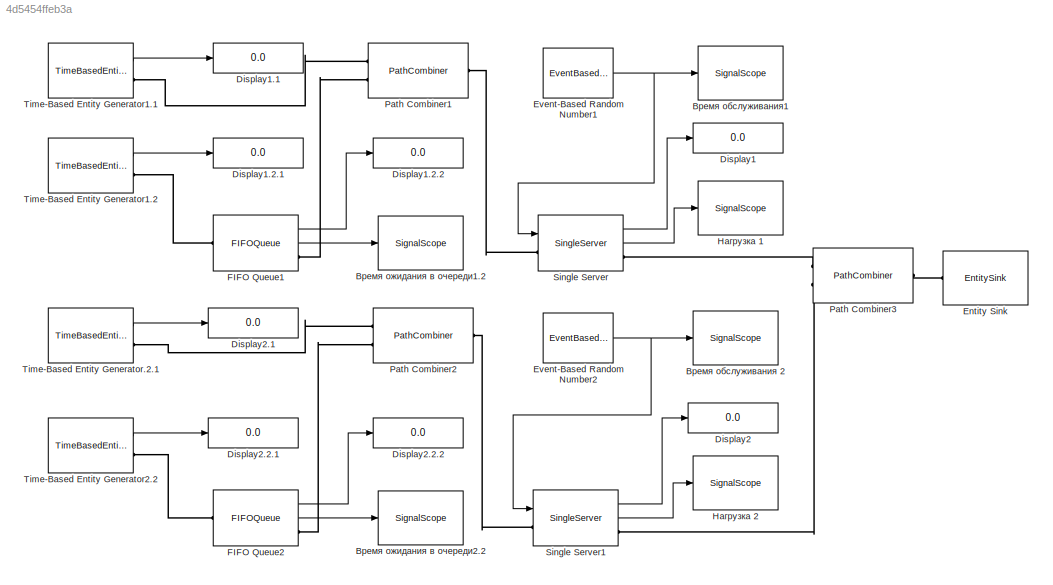
MODEL slx_4d5454ffeb3a
KIND model
BLOCK [Display] Display1
  Decimation = 1
  Lockdown = off
  Ports = [1]
BLOCK [Display] Display1.1
  Decimation = 1
  Lockdown = off
  Ports = [1]
BLOCK [Display] Display1.2.1
  Decimation = 1
  Lockdown = off
  Ports = [1]
BLOCK [Display] Display1.2.2
  Decimation = 1
  Lockdown = off
  Ports = [1]
BLOCK [Display] Display2
  Decimation = 1
  Lockdown = off
  Ports = [1]
BLOCK [Display] Display2.1
  Decimation = 1
  Lockdown = off
  Ports = [1]
BLOCK [Display] Display2.2.1
  Decimation = 1
  Lockdown = off
  Ports = [1]
BLOCK [Display] Display2.2.2
  Decimation = 1
  Lockdown = off
  Ports = [1]
BLOCK [EntitySink] Entity Sink
  Ports = [0, 0, 0, 0, 0, 1]
BLOCK [EventBasedRandomNumber] Event-Based Random Number1
  Distribution = Uniform
  OutputPortMap = o0
  Ports = [0, 1]
  Seed = 12
  maxUnif = 14
  meanExp = 2.5
  minUnif = 8
BLOCK [EventBasedRandomNumber] Event-Based Random Number2
  Distribution = Uniform
  OutputPortMap = o0
  Ports = [0, 1]
  Seed = 12
  maxUnif = 7
  meanExp = 3
  minUnif = 6
BLOCK [FIFOQueue] FIFO Queue1
  Capacity = 30
  OutputPortMap = o0,o2
  Ports = [0, 2, 0, 0, 0, 1, 1]
  StatAverageWait = on
  StatNumberDeparted = on
BLOCK [FIFOQueue] FIFO Queue2
  Capacity = 30
  OutputPortMap = o0,o2
  Ports = [0, 2, 0, 0, 0, 1, 1]
  StatAverageWait = on
  StatNumberDeparted = on
BLOCK [PathCombiner] Path Combiner1
  NumberInputPorts = 2
  Ports = [0, 0, 0, 0, 0, 2, 1]
BLOCK [PathCombiner] Path Combiner2
  NumberInputPorts = 2
  Ports = [0, 0, 0, 0, 0, 2, 1]
BLOCK [PathCombiner] Path Combiner3
  InputPortPrecedence = Round robin
  NumberInputPorts = 2
  Ports = [0, 0, 0, 0, 0, 2, 1]
BLOCK [SingleServer] Single Server
  InputPortMap = u0
  OutputPortMap = o0,o5
  Ports = [1, 2, 0, 0, 0, 1, 1]
  PriorityServiceCompletion = 50
  ServiceTimeFrom = Signal port t
  StatNumberDeparted = on
  StatUtilization = on
BLOCK [SingleServer] Single Server1
  InputPortMap = u0
  OutputPortMap = o0,o5
  Ports = [1, 2, 0, 0, 0, 1, 1]
  PriorityServiceCompletion = 50
  ServiceTimeFrom = Signal port t
  StatNumberDeparted = on
  StatUtilization = on
BLOCK [TimeBasedEntityGenerator] Time-Based Entity Generator.2.1
  Distribution = Exponential
  InitialSeed = 12
  Mean = 25
  OutputPortMap = o0
  Period = 20
  Ports = [0, 1, 0, 0, 0, 0, 1]
  StatNumberDeparted = on
BLOCK [TimeBasedEntityGenerator] Time-Based Entity Generator1.1
  Distribution = Exponential
  InitialSeed = 12
  Mean = 50
  OutputPortMap = o0
  Period = 20
  Ports = [0, 1, 0, 0, 0, 0, 1]
  StatNumberDeparted = on
BLOCK [TimeBasedEntityGenerator] Time-Based Entity Generator1.2
  Distribution = Exponential
  InitialSeed = 12
  Mean = 30
  OutputPortMap = o0
  Period = 3
  Ports = [0, 1, 0, 0, 0, 0, 1]
  StatNumberDeparted = on
BLOCK [TimeBasedEntityGenerator] Time-Based Entity Generator2.2
  Distribution = Exponential
  InitialSeed = 12
  Mean = 15
  OutputPortMap = o0
  Period = 3
  Ports = [0, 1, 0, 0, 0, 0, 1]
  PriorityEntityGeneration = 500
  StatNumberDeparted = on
BLOCK [SignalScope] Время обслуживания 2
  CopyFcn = des.scope.CallbackSupport('seCopyFcn',gcbh)
  DeleteFcn = des.scope.CallbackSupport('seDeleteFcn',gcbh)
  InputPortMap = u0
  LoadFcn = des.scope.CallbackSupport('seLoadFcn',gcbh)
  NameChangeFcn = des.scope.CallbackSupport('seNameChangeFcn',gcbh)
  OpenFcn = des.scope.CallbackSupport('seOpenFcn',gcbh)
  Ports = [1]
  PreSaveFcn = des.scope.CallbackSupport('sePreSaveFcn',gcbh)
  ShowCountPlotted = on
  StartFcn = des.scope.CallbackSupport('seStartFcn',gcbh)
  StopFcn = des.scope.CallbackSupport('seStopFcn',gcbh)
BLOCK [SignalScope] Время обслуживания1
  CopyFcn = des.scope.CallbackSupport('seCopyFcn',gcbh)
  DeleteFcn = des.scope.CallbackSupport('seDeleteFcn',gcbh)
  InputPortMap = u0
  LoadFcn = des.scope.CallbackSupport('seLoadFcn',gcbh)
  NameChangeFcn = des.scope.CallbackSupport('seNameChangeFcn',gcbh)
  OpenFcn = des.scope.CallbackSupport('seOpenFcn',gcbh)
  Ports = [1]
  PreSaveFcn = des.scope.CallbackSupport('sePreSaveFcn',gcbh)
  ShowCountPlotted = on
  StartFcn = des.scope.CallbackSupport('seStartFcn',gcbh)
  StopFcn = des.scope.CallbackSupport('seStopFcn',gcbh)
BLOCK [SignalScope] Время ожидания в очереди1.2
  CopyFcn = des.scope.CallbackSupport('seCopyFcn',gcbh)
  DeleteFcn = des.scope.CallbackSupport('seDeleteFcn',gcbh)
  InputPortMap = u0
  LoadFcn = des.scope.CallbackSupport('seLoadFcn',gcbh)
  NameChangeFcn = des.scope.CallbackSupport('seNameChangeFcn',gcbh)
  OpenFcn = des.scope.CallbackSupport('seOpenFcn',gcbh)
  Ports = [1]
  PreSaveFcn = des.scope.CallbackSupport('sePreSaveFcn',gcbh)
  ShowCountPlotted = on
  StartFcn = des.scope.CallbackSupport('seStartFcn',gcbh)
  StopFcn = des.scope.CallbackSupport('seStopFcn',gcbh)
BLOCK [SignalScope] Время ожидания в очереди2.2
  CopyFcn = des.scope.CallbackSupport('seCopyFcn',gcbh)
  DeleteFcn = des.scope.CallbackSupport('seDeleteFcn',gcbh)
  InputPortMap = u0
  LoadFcn = des.scope.CallbackSupport('seLoadFcn',gcbh)
  NameChangeFcn = des.scope.CallbackSupport('seNameChangeFcn',gcbh)
  OpenFcn = des.scope.CallbackSupport('seOpenFcn',gcbh)
  Ports = [1]
  PreSaveFcn = des.scope.CallbackSupport('sePreSaveFcn',gcbh)
  ShowCountPlotted = on
  StartFcn = des.scope.CallbackSupport('seStartFcn',gcbh)
  StopFcn = des.scope.CallbackSupport('seStopFcn',gcbh)
BLOCK [SignalScope] Нагрузка 1
  CopyFcn = des.scope.CallbackSupport('seCopyFcn',gcbh)
  DeleteFcn = des.scope.CallbackSupport('seDeleteFcn',gcbh)
  InputPortMap = u0
  LoadFcn = des.scope.CallbackSupport('seLoadFcn',gcbh)
  NameChangeFcn = des.scope.CallbackSupport('seNameChangeFcn',gcbh)
  OpenFcn = des.scope.CallbackSupport('seOpenFcn',gcbh)
  Ports = [1]
  PreSaveFcn = des.scope.CallbackSupport('sePreSaveFcn',gcbh)
  ShowCountPlotted = on
  StartFcn = des.scope.CallbackSupport('seStartFcn',gcbh)
  StopFcn = des.scope.CallbackSupport('seStopFcn',gcbh)
  XMax = 640
BLOCK [SignalScope] Нагрузка 2
  CopyFcn = des.scope.CallbackSupport('seCopyFcn',gcbh)
  DeleteFcn = des.scope.CallbackSupport('seDeleteFcn',gcbh)
  InputPortMap = u0
  LoadFcn = des.scope.CallbackSupport('seLoadFcn',gcbh)
  NameChangeFcn = des.scope.CallbackSupport('seNameChangeFcn',gcbh)
  OpenFcn = des.scope.CallbackSupport('seOpenFcn',gcbh)
  Ports = [1]
  PreSaveFcn = des.scope.CallbackSupport('sePreSaveFcn',gcbh)
  ShowCountPlotted = on
  StartFcn = des.scope.CallbackSupport('seStartFcn',gcbh)
  StopFcn = des.scope.CallbackSupport('seStopFcn',gcbh)
NET Event-Based Random Number1:1 -> Single Server:1, Время обслуживания1:1
NET Event-Based Random Number2:1 -> Single Server1:1, Время обслуживания 2:1
LINE FIFO Queue1:1 -> Display1.2.2:1
LINE FIFO Queue1:2 -> Время ожидания в очереди1.2:1
LINE FIFO Queue2:1 -> Display2.2.2:1
LINE FIFO Queue2:2 -> Время ожидания в очереди2.2:1
LINE Single Server1:1 -> Display2:1
LINE Single Server1:2 -> Нагрузка 2:1
LINE Single Server:1 -> Display1:1
LINE Single Server:2 -> Нагрузка 1:1
LINE Time-Based Entity Generator.2.1:1 -> Display2.1:1
LINE Time-Based Entity Generator1.1:1 -> Display1.1:1
LINE Time-Based Entity Generator1.2:1 -> Display1.2.1:1
LINE Time-Based Entity Generator2.2:1 -> Display2.2.1:1
PLINE Entity Sink:LConn1 -- Path Combiner3:RConn1
PLINE FIFO Queue1:LConn1 -- Time-Based Entity Generator1.2:RConn1
PLINE FIFO Queue1:RConn1 -- Path Combiner1:LConn2
PLINE FIFO Queue2:LConn1 -- Time-Based Entity Generator2.2:RConn1
PLINE FIFO Queue2:RConn1 -- Path Combiner2:LConn2
PLINE Path Combiner1:LConn1 -- Time-Based Entity Generator1.1:RConn1
PLINE Path Combiner1:RConn1 -- Single Server:LConn1
PLINE Path Combiner2:LConn1 -- Time-Based Entity Generator.2.1:RConn1
PLINE Path Combiner2:RConn1 -- Single Server1:LConn1
PLINE Path Combiner3:LConn1 -- Single Server:RConn1
PLINE Path Combiner3:LConn2 -- Single Server1:RConn1
note: NET lines group one-source signal fan-out (src -> all destinations, sorted); 1:1 wires keep LINE
